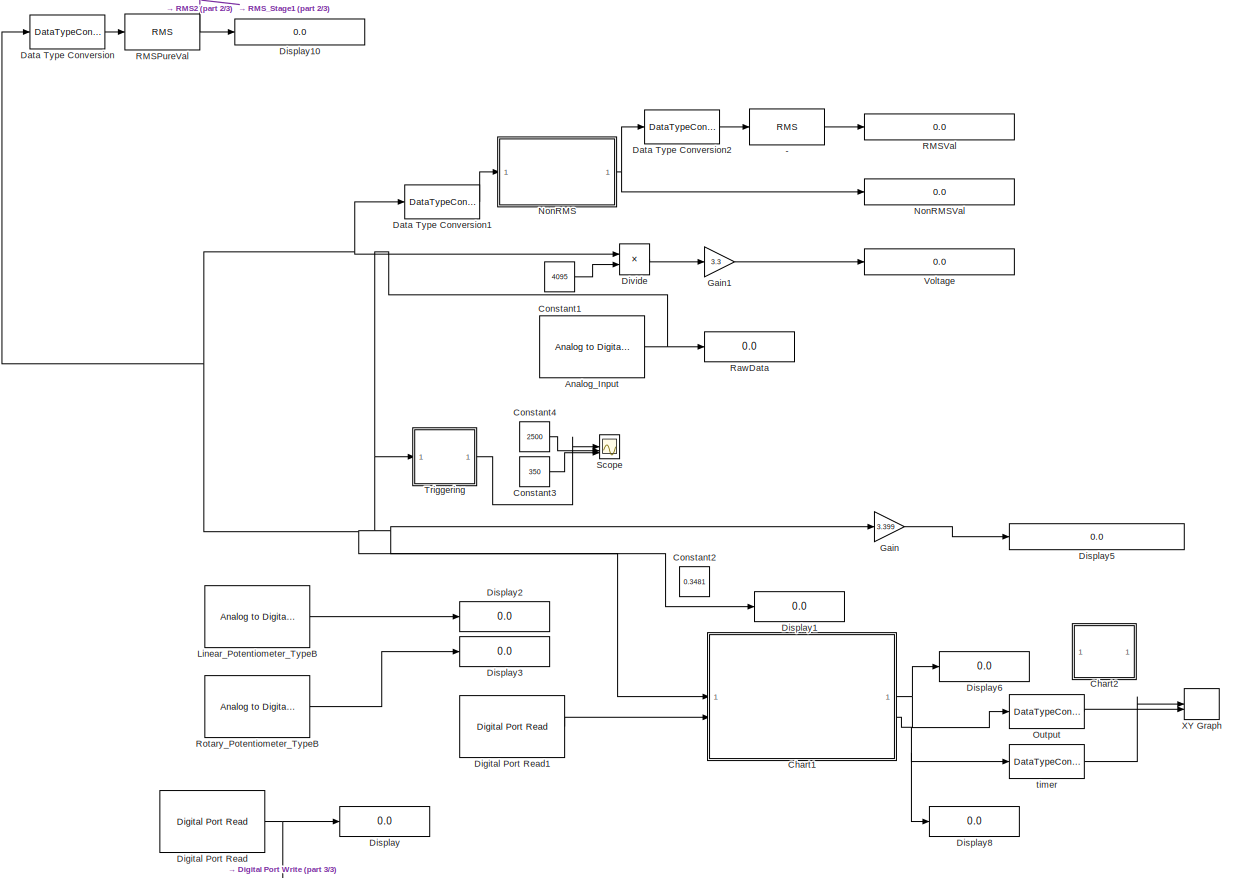
[diagram: root canvas - part 1/3, center side, full height]
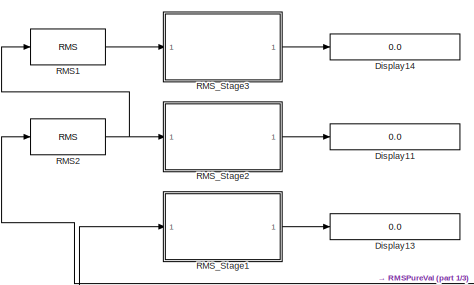
[diagram: root canvas - part 2/3, top left region]
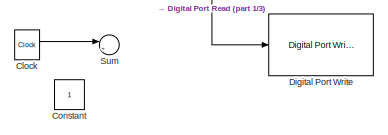
[diagram: root canvas - part 3/3, bottom center region]
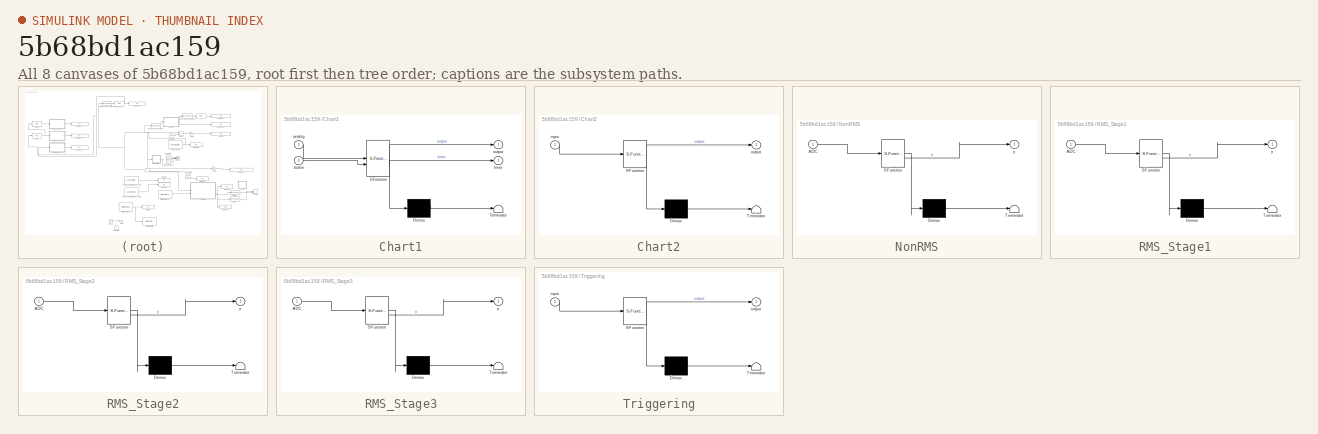
[diagram: thumbnail index - all 8 canvases of the model, root first then tree order]
MODEL slx_5b68bd1ac159
KIND model
CONFIG AbsTol = auto
CONFIG EnableMultiTasking = on
CONFIG FixedStep = 0.001
CONFIG MaxStep = 0.01
CONFIG MinStep = auto
CONFIG RelTol = 1e-3
CONFIG SampleTimeConstraint = Unconstrained
CONFIG SolverName = FixedStepAuto
CONFIG StartTime = 0.0
CONFIG StopTime = inf
BLOCK [Reference] -  REF=dspstat3/RMS
  SourceBlock = dspstat3/RMS
  SourceType = RMS
  UserDataPersistent = on
BLOCK [Reference] Analog_Input  REF=stm32f4xxblockslib/Analog to Digital Converter
  LibrarySourceBlock = stm32g4xxblockslib/Analog to Digital Converter
  SourceBlock = stm32f4xxblockslib/Analog to Digital Converter
  SourceType = stm32cube.blocks.AnalogInput
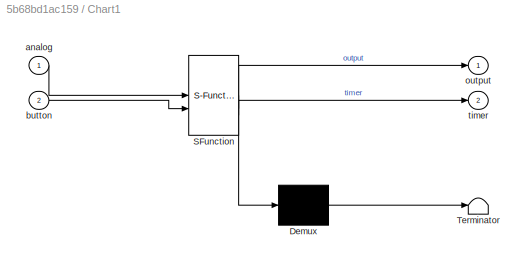
BLOCK [SubSystem] Chart1
  ErrorFcn = Stateflow.Translate.translate
  PermitHierarchicalResolution = ExplicitOnly
  SFBlockType = Chart
  TreatAsAtomicUnit = on
BLOCK [Demux] Chart1/ Demux 
  Outputs = 1
BLOCK [S-Function] Chart1/ SFunction 
  EnableBusSupport = on
  FunctionName = sf_sfun
  PortCounts = [2 3]
  SFcnIsStateOwnerBlock = off
  SFunctionDeploymentMode = off
  Tag = Stateflow S-Function 1
BLOCK [Terminator] Chart1/ Terminator 
BLOCK [Inport] Chart1/analog
BLOCK [Inport] Chart1/button
  Port = 2
BLOCK [Outport] Chart1/output
BLOCK [Outport] Chart1/timer
  Port = 2
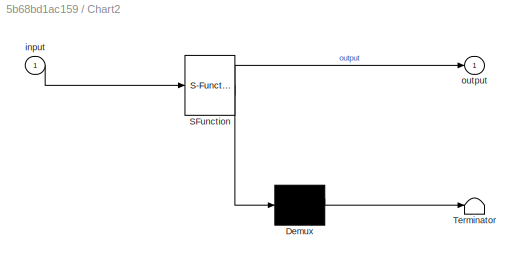
BLOCK [SubSystem] Chart2
  Commented = on
  ErrorFcn = Stateflow.Translate.translate
  PermitHierarchicalResolution = ExplicitOnly
  SFBlockType = Chart
  TreatAsAtomicUnit = on
BLOCK [Demux] Chart2/ Demux 
  Outputs = 1
BLOCK [S-Function] Chart2/ SFunction 
  EnableBusSupport = off
  FunctionName = sf_sfun
  PortCounts = [1 2]
  SFcnIsStateOwnerBlock = off
  SFunctionDeploymentMode = off
  Tag = Stateflow S-Function 2
BLOCK [Terminator] Chart2/ Terminator 
BLOCK [Inport] Chart2/input
BLOCK [Outport] Chart2/output
BLOCK [Clock] Clock
  Commented = on
BLOCK [Constant] Constant
  Commented = on
BLOCK [Constant] Constant1
  Value = 4095
BLOCK [Constant] Constant2
  Value = 0.3481
BLOCK [Constant] Constant3
  Commented = on
  Value = 350
BLOCK [Constant] Constant4
  Commented = on
  Value = 2500
BLOCK [DataTypeConversion] Data Type Conversion
  OutDataTypeStr = double
  RndMeth = Floor
  SaturateOnIntegerOverflow = off
BLOCK [DataTypeConversion] Data Type Conversion1
  OutDataTypeStr = double
  RndMeth = Floor
  SaturateOnIntegerOverflow = off
BLOCK [DataTypeConversion] Data Type Conversion2
  OutDataTypeStr = double
  RndMeth = Floor
  SaturateOnIntegerOverflow = off
BLOCK [Reference] Digital Port Read  REF=stm32f4xxblockslib/Digital Port Read
  Commented = on
  LibrarySourceBlock = stm32g4xxblockslib/Digital Port Read
  SourceBlock = stm32f4xxblockslib/Digital Port Read
  SourceType = stm32cube.blocks.DigitalPortRead
BLOCK [Reference] Digital Port Read1  REF=stm32f4xxblockslib/Digital Port Read
  LibrarySourceBlock = stm32g4xxblockslib/Digital Port Read
  SourceBlock = stm32f4xxblockslib/Digital Port Read
  SourceType = stm32cube.blocks.DigitalPortRead
BLOCK [Reference] Digital Port Write  REF=stm32f4xxblockslib/Digital Port Write
  Commented = on
  LibrarySourceBlock = stm32g4xxblockslib/Digital Port Write
  SourceBlock = stm32f4xxblockslib/Digital Port Write
  SourceType = stm32cube.blocks.DigitalPortWrite
BLOCK [Display] Display
  Commented = on
  Decimation = 1
BLOCK [Display] Display1
  Decimation = 1
  Format = long
BLOCK [Display] Display10
  Decimation = 1
  Format = long
BLOCK [Display] Display11
  Decimation = 1
  Format = long
BLOCK [Display] Display13
  Decimation = 1
  Format = long
BLOCK [Display] Display14
  Decimation = 1
  Format = long
BLOCK [Display] Display2
  Decimation = 1
BLOCK [Display] Display3
  Decimation = 1
BLOCK [Display] Display5
  Commented = on
  Decimation = 2
  Format = long
BLOCK [Display] Display6
  Decimation = 1
BLOCK [Display] Display8
  Commented = on
  Decimation = 1
BLOCK [Product] Divide
  Inputs = */
BLOCK [Gain] Gain
  Commented = on
  Gain = 3.399
BLOCK [Gain] Gain1
  Gain = 3.3
BLOCK [Reference] Linear_Potentiometer_TypeB  REF=stm32f4xxblockslib/Analog to Digital Converter
  Commented = on
  LibrarySourceBlock = stm32g4xxblockslib/Analog to Digital Converter
  SourceBlock = stm32f4xxblockslib/Analog to Digital Converter
  SourceType = stm32cube.blocks.AnalogInput
BLOCK [SubSystem] NonRMS
  ErrorFcn = Stateflow.Translate.translate
  PermitHierarchicalResolution = ExplicitOnly
  SFBlockType = MATLAB Function
  TreatAsAtomicUnit = on
BLOCK [Demux] NonRMS/ Demux 
  Outputs = 1
BLOCK [S-Function] NonRMS/ SFunction 
  EnableBusSupport = on
  FunctionName = sf_sfun
  PortCounts = [1 2]
  SFcnIsStateOwnerBlock = off
  SFunctionDeploymentMode = off
  Tag = Stateflow S-Function 4
BLOCK [Terminator] NonRMS/ Terminator 
BLOCK [Inport] NonRMS/ADC
BLOCK [Outport] NonRMS/y
BLOCK [Display] NonRMSVal
  Decimation = 1
  Format = long
BLOCK [DataTypeConversion] Output
  Commented = on
  OutDataTypeStr = double
  RndMeth = Floor
  SaturateOnIntegerOverflow = off
BLOCK [Reference] RMS1  REF=dspstat3/RMS
  SourceBlock = dspstat3/RMS
  SourceType = RMS
  UserDataPersistent = on
BLOCK [Reference] RMS2  REF=dspstat3/RMS
  SourceBlock = dspstat3/RMS
  SourceType = RMS
  UserDataPersistent = on
BLOCK [Reference] RMSPureVal  REF=dspstat3/RMS
  SourceBlock = dspstat3/RMS
  SourceType = RMS
  UserDataPersistent = on
BLOCK [Display] RMSVal
  Decimation = 1
  Format = long
BLOCK [SubSystem] RMS_Stage1
  ErrorFcn = Stateflow.Translate.translate
  PermitHierarchicalResolution = ExplicitOnly
  SFBlockType = MATLAB Function
  TreatAsAtomicUnit = on
BLOCK [Demux] RMS_Stage1/ Demux 
  Outputs = 1
BLOCK [S-Function] RMS_Stage1/ SFunction 
  EnableBusSupport = on
  FunctionName = sf_sfun
  PortCounts = [1 2]
  SFcnIsStateOwnerBlock = off
  SFunctionDeploymentMode = off
  Tag = Stateflow S-Function 5
BLOCK [Terminator] RMS_Stage1/ Terminator 
BLOCK [Inport] RMS_Stage1/ADC
BLOCK [Outport] RMS_Stage1/y
BLOCK [SubSystem] RMS_Stage2
  ErrorFcn = Stateflow.Translate.translate
  PermitHierarchicalResolution = ExplicitOnly
  SFBlockType = MATLAB Function
  TreatAsAtomicUnit = on
BLOCK [Demux] RMS_Stage2/ Demux 
  Outputs = 1
BLOCK [S-Function] RMS_Stage2/ SFunction 
  EnableBusSupport = on
  FunctionName = sf_sfun
  PortCounts = [1 2]
  SFcnIsStateOwnerBlock = off
  SFunctionDeploymentMode = off
  Tag = Stateflow S-Function 6
BLOCK [Terminator] RMS_Stage2/ Terminator 
BLOCK [Inport] RMS_Stage2/ADC
BLOCK [Outport] RMS_Stage2/y
BLOCK [SubSystem] RMS_Stage3
  ErrorFcn = Stateflow.Translate.translate
  PermitHierarchicalResolution = ExplicitOnly
  SFBlockType = MATLAB Function
  TreatAsAtomicUnit = on
BLOCK [Demux] RMS_Stage3/ Demux 
  Outputs = 1
BLOCK [S-Function] RMS_Stage3/ SFunction 
  EnableBusSupport = on
  FunctionName = sf_sfun
  PortCounts = [1 2]
  SFcnIsStateOwnerBlock = off
  SFunctionDeploymentMode = off
  Tag = Stateflow S-Function 7
BLOCK [Terminator] RMS_Stage3/ Terminator 
BLOCK [Inport] RMS_Stage3/ADC
BLOCK [Outport] RMS_Stage3/y
BLOCK [Display] RawData
  Decimation = 1
BLOCK [Reference] Rotary_Potentiometer_TypeB  REF=stm32f4xxblockslib/Analog to Digital Converter
  Commented = on
  LibrarySourceBlock = stm32g4xxblockslib/Analog to Digital Converter
  SourceBlock = stm32f4xxblockslib/Analog to Digital Converter
  SourceType = stm32cube.blocks.AnalogInput
BLOCK [Scope] Scope
  Commented = on
  Floating = off
  NumInputPorts = 3
  ScopeSpecificationString = Simulink.scopes.TimeScopeBlockCfg('CurrentConfiguration', extmgr.ConfigurationSet(extmgr.Configuration('Core','General UI',true),extmgr.Configuration('Core','Source UI',true),extmgr.Configuration('Sources','WiredSimulink',true),extmgr.Configuration('Visuals','Time Domain',true,'SerializedDisplays',{struct('MinYLimReal','-511.875','MaxYLimReal','4606.875','YLabelReal','','MinYLimMag',' 0.00000','Ma...<+1483ch>
BLOCK [Sum] Sum
  Commented = on
  Inputs = |++
BLOCK [SubSystem] Triggering
  ErrorFcn = Stateflow.Translate.translate
  PermitHierarchicalResolution = ExplicitOnly
  SFBlockType = Chart
  TreatAsAtomicUnit = on
BLOCK [Demux] Triggering/ Demux 
  Outputs = 1
BLOCK [S-Function] Triggering/ SFunction 
  EnableBusSupport = on
  FunctionName = sf_sfun
  PortCounts = [1 2]
  SFcnIsStateOwnerBlock = off
  SFunctionDeploymentMode = off
  Tag = Stateflow S-Function 3
BLOCK [Terminator] Triggering/ Terminator 
BLOCK [Inport] Triggering/input
BLOCK [Outport] Triggering/output
BLOCK [Display] Voltage
  Decimation = 1
  Format = long
BLOCK [Record] XY Graph
  Commented = on
  CompatibilityTag = XY
  FileSettingsInternal = {"entries":[{"content":{"excelSettings":{"content":{},"type":"Streamout.ExcelSettings"}},"type":"Streamout.FileSettingStorage","uuid":""}],"packageUris":["http:\/\/schema.mathworks.com\/mf0\/streamout_blocks\/R2020a"],"version":"1.0"}
  Layout = [1 1]
  SignalsInternal = {"entries":[{"content":{},"type":"RecordBlkView.InputSignals","uuid":""}],"packageUris":["http:\/\/schema.mathworks.com\/mf0\/streamout_blocks\/R2020a"],"version":"1.0"}
  VisualizationBindings = {"xyplotplugin":{"info":[{"series":[],"subplotID":1}]}}
BLOCK [DataTypeConversion] timer
  Commented = on
  OutDataTypeStr = double
  RndMeth = Floor
  SaturateOnIntegerOverflow = off
LINE -:1 -> RMSVal:1
NET Analog_Input:1 -> Chart1:1, Data Type Conversion1:1, Data Type Conversion:1, Display1:1, Divide:1, Gain:1, RawData:1, Triggering:1
NET Chart1:1 -> Display6:1, Output:1
NET Chart1:2 -> Display8:1, timer:1
LINE Clock:1 -> Sum:1
LINE Constant1:1 -> Divide:2
LINE Constant3:1 -> Scope:3
LINE Constant4:1 -> Scope:2
LINE Data Type Conversion1:1 -> NonRMS:1
LINE Data Type Conversion2:1 -> -:1
LINE Data Type Conversion:1 -> RMSPureVal:1
LINE Digital Port Read1:1 -> Chart1:2
NET Digital Port Read:1 -> Digital Port Write:1, Display:1
LINE Divide:1 -> Gain1:1
LINE Gain1:1 -> Voltage:1
LINE Gain:1 -> Display5:1
LINE Linear_Potentiometer_TypeB:1 -> Display2:1
NET NonRMS:1 -> Data Type Conversion2:1, NonRMSVal:1
LINE Output:1 -> XY Graph:2
LINE RMS1:1 -> RMS_Stage3:1
NET RMS2:1 -> RMS1:1, RMS_Stage2:1
NET RMSPureVal:1 -> Display10:1, RMS2:1, RMS_Stage1:1
LINE RMS_Stage1:1 -> Display13:1
LINE RMS_Stage2:1 -> Display11:1
LINE RMS_Stage3:1 -> Display14:1
LINE Rotary_Potentiometer_TypeB:1 -> Display3:1
LINE Triggering:1 -> Scope:1
LINE timer:1 -> XY Graph:1
note: NET lines group one-source signal fan-out (src -> all destinations, sorted); 1:1 wires keep LINE
CHART Chart1 states=3 transitions=4
  STATE_LABEL 'Do\nduring:\ntimer = timer + 0.01;\noutput = analog\ntime = time + 0.01;'
  STATE_LABEL 'Initial\nentry:\ntimer = 0;\nduring:\ntime = 0;\noutput = 0;'
  STATE_LABEL 'Idle1\ntime = 0;\noutput = 0;'
CHART Chart2 states=3 transitions=5
  STATE_LABEL 'Case1\nouput ='
  STATE_LABEL 'Initial\ninput;\noutput;'
  STATE_LABEL 'Case2\noutput = (input +126.47)/0.3089;'
CHART Triggering states=3 transitions=5
  STATE_LABEL 'Nontrig\n%entry:\n%time = 0;\noutput = 0;\n%during:\n%time = time + 0.01'
  STATE_LABEL 'Initial\ninput;\n%time = 0;\noutput = 0;'
  STATE_LABEL 'Trig\noutput = 4095;\n%entry:\n%time = 0;\n%during:\n%time = time + 0.01'
CHART NonRMS states=1 transitions=1
  STATE_LABEL 'eML_blk_kernel()'
  STATE_LABEL 'SCRIPT:\nfunction y = calculate_output(ADC)\n% Input:\n% ADC - ค่า ADC ที่รับเข้ามา\n% Output:\n% y - ค่าที่คำนวณได้ตามเงื่อนไขของ ADC\n\n    if ADC < 328\n        % ตั้งค่าคงที่ในสมการพหุนาม\n        coefficients = [-2e-17, 6e-14, -8e-11, 3e-8, 0.0002, 0.0158, 2.6752];\n        y_target = ADC; % กำหนด y เป็นค่า ADC\n\n        % ฟังก์ชันที่ใช้ในการหาค่า x ที่ทำให้ y ใกล้เคียงกับ ADC\n        polynomial_func = ...<+450ch>'  <repeated x4 — deduplicated; at blocks: NonRMS, RMS_Stage1, RMS_Stage2, RMS_Stage3>
CHART RMS_Stage1 states=1 transitions=1
  STATE_LABEL 'eML_blk_kernel()'
CHART RMS_Stage2 states=1 transitions=1
  STATE_LABEL 'eML_blk_kernel()'
CHART RMS_Stage3 states=1 transitions=1
  STATE_LABEL 'eML_blk_kernel()'
CHART  states=0 transitions=0
CHART  states=0 transitions=0
CHART  states=0 transitions=0
CHART  states=0 transitions=0
CHART  states=0 transitions=0
CHART  states=0 transitions=0
CHART  states=0 transitions=0
